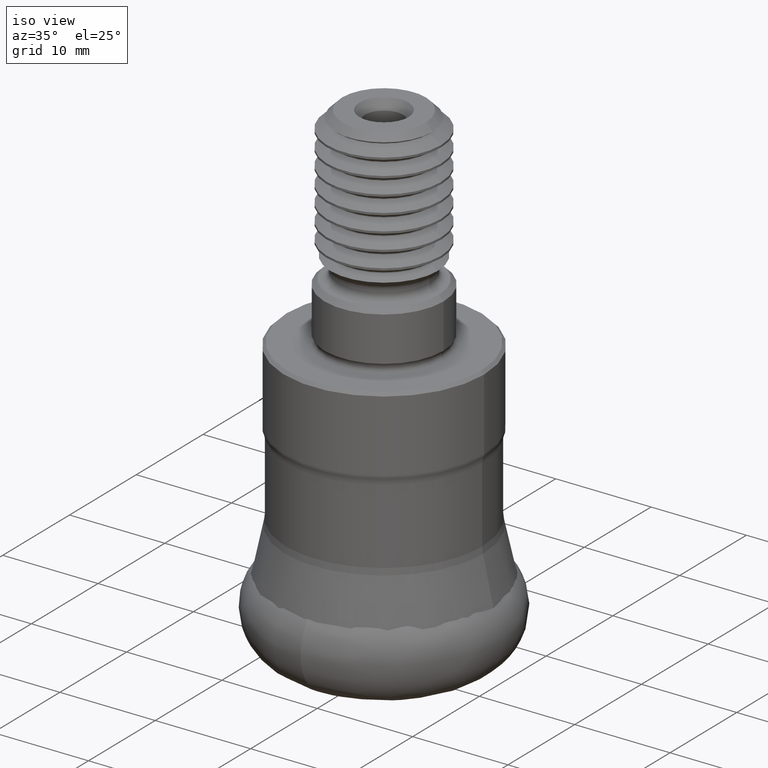
[diagram: clean part render]
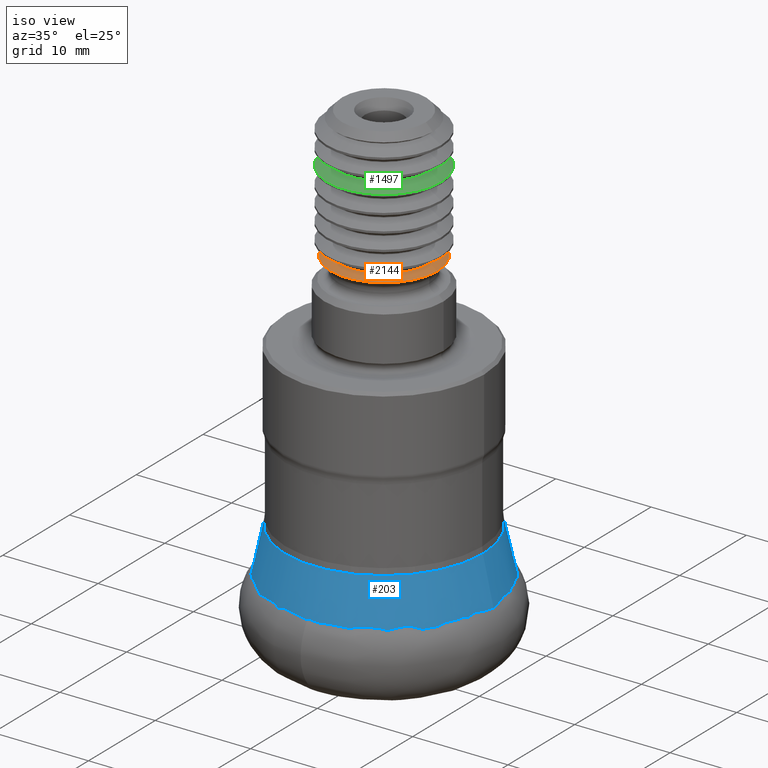
[diagram: same view with three faces highlighted in distinct colors, each labeled with its STEP entity id]
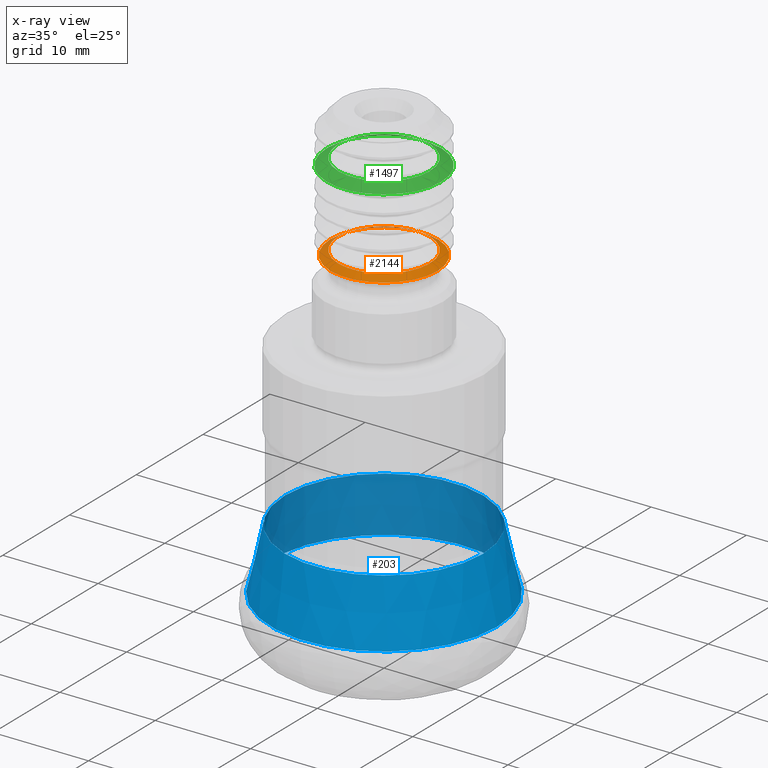
[diagram: x-ray of the same camera — body ghosted, the three highlighted faces saturated]
A machine part, iso view with three faces highlighted in distinct colors.
The next image is the same camera in x-ray (body ghosted, the three faces saturated) — at least one of them is partly hidden behind the body in this view.
Their STEP definitions:

[orange] entity #2144 — the highlighted conical surface has half-angle 60 deg.
#11 = DIRECTION ( 'NONE',  ( -0.0000000000000000000, -0.0000000000000000000, 1.000000000000000000 ) ) ;
#150 = CONICAL_SURFACE ( 'NONE', #2044, 4.789999999999997400, 1.047197551196129600 ) ;
#175 = EDGE_LOOP ( 'NONE', ( #589 ) ) ;
#197 = AXIS2_PLACEMENT_3D ( 'NONE', #231, #1529, #1379 ) ;
#225 = CARTESIAN_POINT ( 'NONE',  ( 5.627328658381549600, 0.0000000000000000000, -38.22732865838173000 ) ) ;
#231 = CARTESIAN_POINT ( 'NONE',  ( 0.0000000000000000000, 0.0000000000000000000, -38.71076058469903100 ) ) ;
#386 = DIRECTION ( 'NONE',  ( -0.0000000000000000000, -0.0000000000000000000, 1.000000000000000000 ) ) ;
#589 = ORIENTED_EDGE ( 'NONE', *, *, #1457, .F. ) ;
#638 = EDGE_CURVE ( 'NONE', #1148, #1148, #879, .T. ) ;
#680 = FACE_BOUND ( 'NONE', #1647, .T. ) ;
#700 = VERTEX_POINT ( 'NONE', #225 ) ;
#879 = CIRCLE ( 'NONE', #197, 4.789999999999997400 ) ;
#1148 = VERTEX_POINT ( 'NONE', #2008 ) ;
#1369 = DIRECTION ( 'NONE',  ( 1.000000000000000000, 0.0000000000000000000, 0.0000000000000000000 ) ) ;
#1379 = DIRECTION ( 'NONE',  ( 1.000000000000000000, 0.0000000000000000000, 0.0000000000000000000 ) ) ;
#1457 = EDGE_CURVE ( 'NONE', #700, #700, #1712, .T. ) ;
#1504 = CARTESIAN_POINT ( 'NONE',  ( 0.0000000000000000000, 0.0000000000000000000, -38.22732865838173000 ) ) ;
#1529 = DIRECTION ( 'NONE',  ( -0.0000000000000000000, -0.0000000000000000000, 1.000000000000000000 ) ) ;
#1579 = CARTESIAN_POINT ( 'NONE',  ( 0.0000000000000000000, 0.0000000000000000000, -38.71076058469903100 ) ) ;
#1647 = EDGE_LOOP ( 'NONE', ( #1984 ) ) ;
#1712 = CIRCLE ( 'NONE', #2092, 5.627328658381549600 ) ;
#1765 = DIRECTION ( 'NONE',  ( 1.000000000000000000, 0.0000000000000000000, 0.0000000000000000000 ) ) ;
#1927 = FACE_OUTER_BOUND ( 'NONE', #175, .T. ) ;
#1984 = ORIENTED_EDGE ( 'NONE', *, *, #638, .T. ) ;
#2008 = CARTESIAN_POINT ( 'NONE',  ( 4.789999999999997400, 0.0000000000000000000, -38.71076058469903100 ) ) ;
#2044 = AXIS2_PLACEMENT_3D ( 'NONE', #1579, #11, #1765 ) ;
#2092 = AXIS2_PLACEMENT_3D ( 'NONE', #1504, #386, #1369 ) ;
#2144 = ADVANCED_FACE ( 'NONE', ( #1927, #680 ), #150, .T. ) ;

[blue] entity #203 — the highlighted conical surface has half-angle 12.928 deg.
#46 = EDGE_LOOP ( 'NONE', ( #1311 ) ) ;
#50 = EDGE_LOOP ( 'NONE', ( #972 ) ) ;
#174 = DIRECTION ( 'NONE',  ( -0.0000000000000000000, -0.0000000000000000000, 1.000000000000000000 ) ) ;
#191 = VERTEX_POINT ( 'NONE', #1798 ) ;
#203 = ADVANCED_FACE ( 'NONE', ( #237, #1952 ), #1117, .T. ) ;
#237 = FACE_OUTER_BOUND ( 'NONE', #46, .T. ) ;
#406 = AXIS2_PLACEMENT_3D ( 'NONE', #1487, #174, #1330 ) ;
#563 = CARTESIAN_POINT ( 'NONE',  ( 0.0000000000000000000, 0.0000000000000000000, -6.159238619695668300 ) ) ;
#692 = AXIS2_PLACEMENT_3D ( 'NONE', #563, #1873, #715 ) ;
#715 = DIRECTION ( 'NONE',  ( 1.000000000000000000, 0.0000000000000000000, 0.0000000000000000000 ) ) ;
#724 = CARTESIAN_POINT ( 'NONE',  ( 0.0000000000000000000, 0.0000000000000000000, -12.66870715248322400 ) ) ;
#972 = ORIENTED_EDGE ( 'NONE', *, *, #1536, .T. ) ;
#974 = VERTEX_POINT ( 'NONE', #1676 ) ;
#1117 = CONICAL_SURFACE ( 'NONE', #1259, 10.37604934419867000, 0.2256440261031907300 ) ;
#1142 = DIRECTION ( 'NONE',  ( -0.0000000000000000000, -0.0000000000000000000, 1.000000000000000000 ) ) ;
#1259 = AXIS2_PLACEMENT_3D ( 'NONE', #724, #1142, #1690 ) ;
#1292 = CIRCLE ( 'NONE', #692, 11.87031889064976700 ) ;
#1311 = ORIENTED_EDGE ( 'NONE', *, *, #1901, .F. ) ;
#1330 = DIRECTION ( 'NONE',  ( 1.000000000000000000, 0.0000000000000000000, 0.0000000000000000000 ) ) ;
#1487 = CARTESIAN_POINT ( 'NONE',  ( 0.0000000000000000000, 0.0000000000000000000, -12.66870715248322400 ) ) ;
#1536 = EDGE_CURVE ( 'NONE', #191, #191, #1813, .T. ) ;
#1676 = CARTESIAN_POINT ( 'NONE',  ( 11.87031889064976700, 0.0000000000000000000, -6.159238619695668300 ) ) ;
#1690 = DIRECTION ( 'NONE',  ( 1.000000000000000000, 0.0000000000000000000, 0.0000000000000000000 ) ) ;
#1798 = CARTESIAN_POINT ( 'NONE',  ( 10.37604934419867000, 0.0000000000000000000, -12.66870715248322400 ) ) ;
#1813 = CIRCLE ( 'NONE', #406, 10.37604934419867000 ) ;
#1873 = DIRECTION ( 'NONE',  ( -0.0000000000000000000, -0.0000000000000000000, 1.000000000000000000 ) ) ;
#1901 = EDGE_CURVE ( 'NONE', #974, #974, #1292, .T. ) ;
#1952 = FACE_BOUND ( 'NONE', #50, .T. ) ;

[green] entity #1497 — the highlighted conical surface has half-angle 60 deg.
#60 = AXIS2_PLACEMENT_3D ( 'NONE', #2131, #1539, #1911 ) ;
#103 = FACE_BOUND ( 'NONE', #1211, .T. ) ;
#126 = VERTEX_POINT ( 'NONE', #864 ) ;
#161 = CONICAL_SURFACE ( 'NONE', #60, 4.790000000000001800, 1.047197551196567900 ) ;
#470 = VERTEX_POINT ( 'NONE', #1017 ) ;
#779 = FACE_OUTER_BOUND ( 'NONE', #1463, .T. ) ;
#806 = CIRCLE ( 'NONE', #1840, 4.790000000000001800 ) ;
#833 = CARTESIAN_POINT ( 'NONE',  ( 0.0000000000000000000, 0.0000000000000000000, -47.46076058469902400 ) ) ;
#864 = CARTESIAN_POINT ( 'NONE',  ( 5.999999999999968900, 0.0000000000000000000, -46.76216675897954600 ) ) ;
#898 = ORIENTED_EDGE ( 'NONE', *, *, #1722, .T. ) ;
#939 = DIRECTION ( 'NONE',  ( 1.000000000000000000, 0.0000000000000000000, 0.0000000000000000000 ) ) ;
#984 = DIRECTION ( 'NONE',  ( 1.000000000000000000, 0.0000000000000000000, 0.0000000000000000000 ) ) ;
#1017 = CARTESIAN_POINT ( 'NONE',  ( 4.790000000000001800, 0.0000000000000000000, -47.46076058469902400 ) ) ;
#1211 = EDGE_LOOP ( 'NONE', ( #898 ) ) ;
#1243 = CIRCLE ( 'NONE', #2052, 5.999999999999968900 ) ;
#1309 = DIRECTION ( 'NONE',  ( -0.0000000000000000000, -0.0000000000000000000, 1.000000000000000000 ) ) ;
#1343 = ORIENTED_EDGE ( 'NONE', *, *, #1747, .F. ) ;
#1463 = EDGE_LOOP ( 'NONE', ( #1343 ) ) ;
#1497 = ADVANCED_FACE ( 'NONE', ( #779, #103 ), #161, .T. ) ;
#1539 = DIRECTION ( 'NONE',  ( -0.0000000000000000000, -0.0000000000000000000, 1.000000000000000000 ) ) ;
#1642 = CARTESIAN_POINT ( 'NONE',  ( 0.0000000000000000000, 0.0000000000000000000, -46.76216675897954600 ) ) ;
#1722 = EDGE_CURVE ( 'NONE', #470, #470, #806, .T. ) ;
#1747 = EDGE_CURVE ( 'NONE', #126, #126, #1243, .T. ) ;
#1820 = DIRECTION ( 'NONE',  ( -0.0000000000000000000, -0.0000000000000000000, 1.000000000000000000 ) ) ;
#1840 = AXIS2_PLACEMENT_3D ( 'NONE', #833, #1820, #984 ) ;
#1911 = DIRECTION ( 'NONE',  ( 1.000000000000000000, 0.0000000000000000000, 0.0000000000000000000 ) ) ;
#2052 = AXIS2_PLACEMENT_3D ( 'NONE', #1642, #1309, #939 ) ;
#2131 = CARTESIAN_POINT ( 'NONE',  ( 0.0000000000000000000, 0.0000000000000000000, -47.46076058469902400 ) ) ;